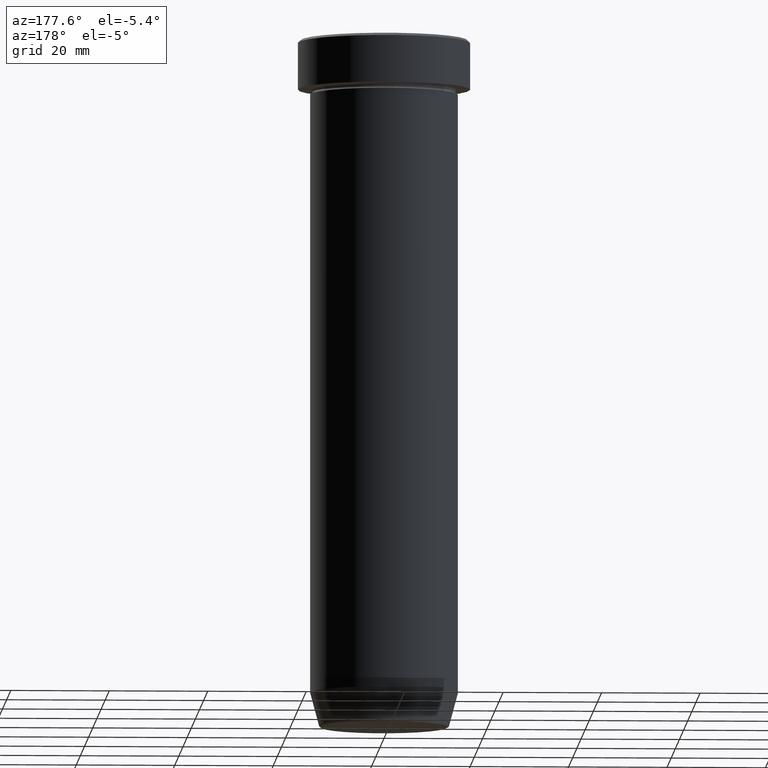
[diagram: clean part render]
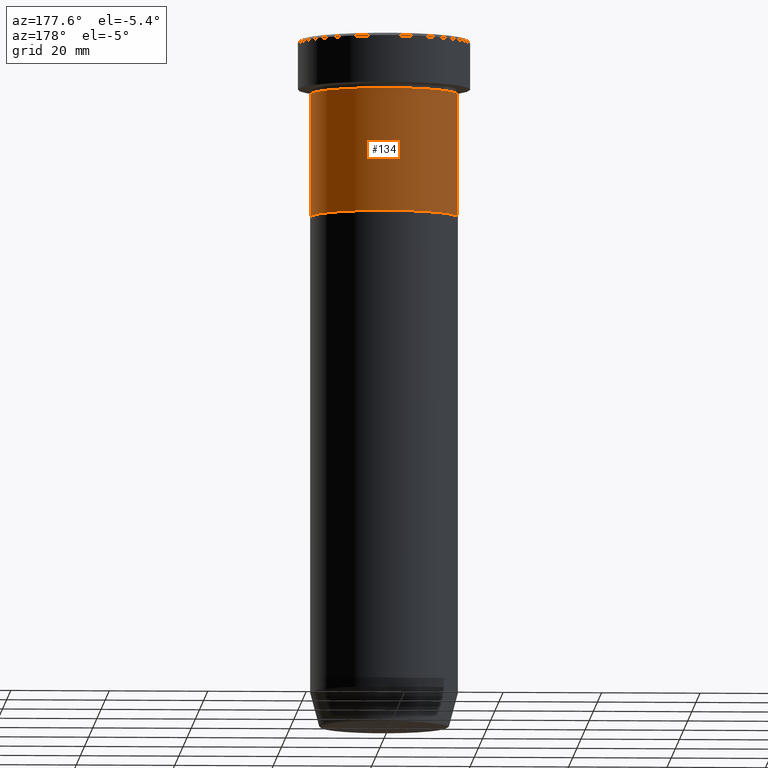
[diagram: same view with one face highlighted and labeled with its STEP entity id]
A machine part, auxiliary view. The second image highlights one B-rep face of the part: STEP entity #134.
In plain terms, the highlighted cylindrical surface (partial cylindrical patch) has radius 15 mm, axis along (-0, -0, 1).
Its self-contained STEP definition (entity closure, byte-faithful):
#4 = VERTEX_POINT ( 'NONE', #153 ) ;
#20 = CARTESIAN_POINT ( 'NONE',  ( 0.000000000000000000, 0.000000000000000000, -11.00000000000000000 ) ) ;
#34 = DIRECTION ( 'NONE',  ( -0.000000000000000000, -0.000000000000000000, 1.000000000000000000 ) ) ;
#46 = VERTEX_POINT ( 'NONE', #405 ) ;
#79 = CYLINDRICAL_SURFACE ( 'NONE', #523, 15.00000000000000000 ) ;
#82 = VERTEX_POINT ( 'NONE', #165 ) ;
#108 = DIRECTION ( 'NONE',  ( 1.000000000000000000, 0.000000000000000000, 0.000000000000000000 ) ) ;
#112 = CIRCLE ( 'NONE', #457, 15.00000000000000000 ) ;
#121 = VECTOR ( 'NONE', #376, 1000.000000000000000 ) ;
#134 = ADVANCED_FACE ( 'NONE', ( #179 ), #79, .T. ) ;
#143 = EDGE_CURVE ( 'NONE', #4, #82, #592, .T. ) ;
#153 = CARTESIAN_POINT ( 'NONE',  ( 15.00000000000000000, 0.000000000000000000, -36.00000000000000000 ) ) ;
#165 = CARTESIAN_POINT ( 'NONE',  ( 15.00000000000000000, 0.000000000000000000, -11.00000000000000000 ) ) ;
#179 = FACE_OUTER_BOUND ( 'NONE', #331, .T. ) ;
#183 = DIRECTION ( 'NONE',  ( 1.000000000000000000, 0.000000000000000000, 0.000000000000000000 ) ) ;
#184 = ORIENTED_EDGE ( 'NONE', *, *, #363, .F. ) ;
#202 = EDGE_CURVE ( 'NONE', #4, #46, #226, .T. ) ;
#226 = CIRCLE ( 'NONE', #409, 15.00000000000000000 ) ;
#242 = VERTEX_POINT ( 'NONE', #464 ) ;
#243 = CARTESIAN_POINT ( 'NONE',  ( -15.00000000000000000, 1.836970198721029589E-15, 0.000000000000000000 ) ) ;
#268 = CARTESIAN_POINT ( 'NONE',  ( 15.00000000000000000, 0.000000000000000000, 0.000000000000000000 ) ) ;
#293 = DIRECTION ( 'NONE',  ( -0.000000000000000000, -0.000000000000000000, 1.000000000000000000 ) ) ;
#312 = DIRECTION ( 'NONE',  ( -0.000000000000000000, -0.000000000000000000, 1.000000000000000000 ) ) ;
#322 = CARTESIAN_POINT ( 'NONE',  ( 0.000000000000000000, 0.000000000000000000, 0.000000000000000000 ) ) ;
#331 = EDGE_LOOP ( 'NONE', ( #569, #595, #184, #546 ) ) ;
#363 = EDGE_CURVE ( 'NONE', #82, #242, #112, .T. ) ;
#376 = DIRECTION ( 'NONE',  ( -0.000000000000000000, -0.000000000000000000, 1.000000000000000000 ) ) ;
#405 = CARTESIAN_POINT ( 'NONE',  ( -15.00000000000000000, 1.836970198721029589E-15, -36.00000000000000000 ) ) ;
#409 = AXIS2_PLACEMENT_3D ( 'NONE', #508, #312, #183 ) ;
#423 = LINE ( 'NONE', #243, #121 ) ;
#457 = AXIS2_PLACEMENT_3D ( 'NONE', #20, #293, #108 ) ;
#464 = CARTESIAN_POINT ( 'NONE',  ( -15.00000000000000000, 1.836970198721029589E-15, -11.00000000000000000 ) ) ;
#467 = EDGE_CURVE ( 'NONE', #46, #242, #423, .T. ) ;
#506 = DIRECTION ( 'NONE',  ( 1.000000000000000000, 0.000000000000000000, 0.000000000000000000 ) ) ;
#508 = CARTESIAN_POINT ( 'NONE',  ( 0.000000000000000000, 0.000000000000000000, -36.00000000000000000 ) ) ;
#511 = DIRECTION ( 'NONE',  ( -0.000000000000000000, -0.000000000000000000, 1.000000000000000000 ) ) ;
#523 = AXIS2_PLACEMENT_3D ( 'NONE', #322, #34, #506 ) ;
#546 = ORIENTED_EDGE ( 'NONE', *, *, #143, .F. ) ;
#569 = ORIENTED_EDGE ( 'NONE', *, *, #202, .T. ) ;
#592 = LINE ( 'NONE', #268, #597 ) ;
#595 = ORIENTED_EDGE ( 'NONE', *, *, #467, .T. ) ;
#597 = VECTOR ( 'NONE', #511, 1000.000000000000000 ) ;